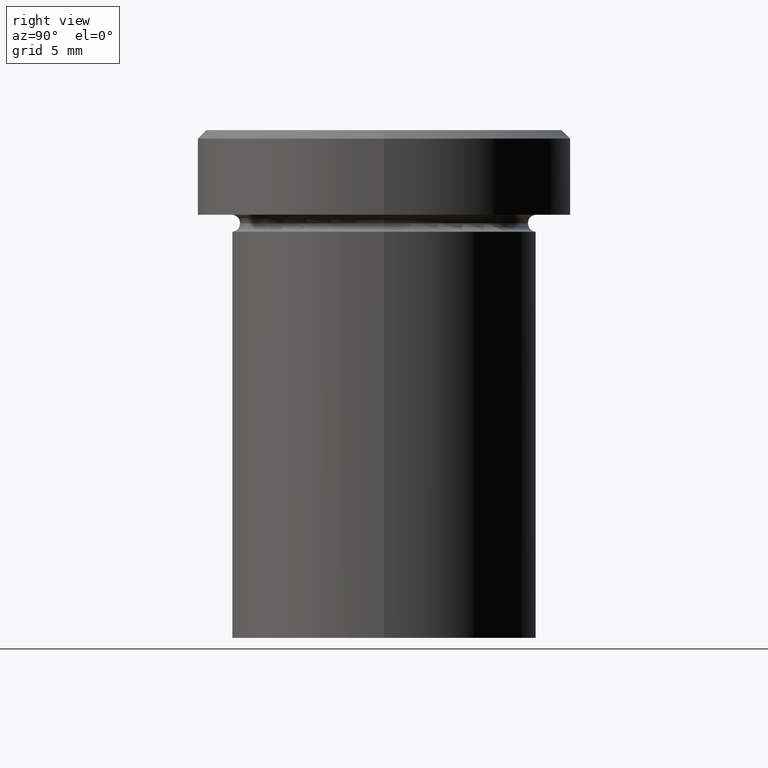
[diagram: clean part render]
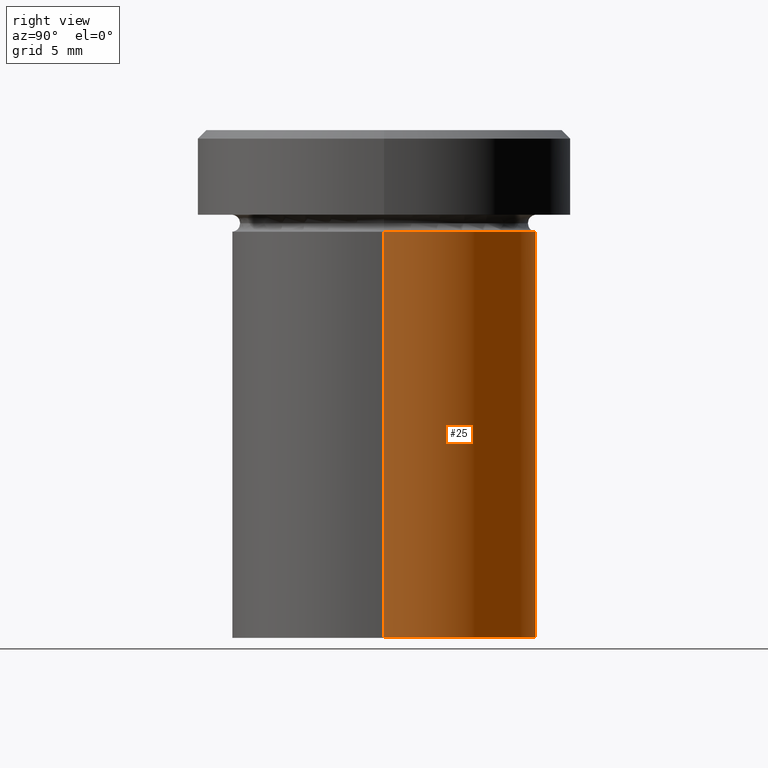
[diagram: same view with one face highlighted and labeled with its STEP entity id]
A machine part, right view. The second image highlights one B-rep face of the part: STEP entity #25.
In plain terms, the highlighted cylindrical surface (partial cylindrical patch) has radius 9 mm, axis along (-0, -0, 1).
Its self-contained STEP definition (entity closure, byte-faithful):
#12 = LINE ( 'NONE', #354, #38 ) ;
#19 = DIRECTION ( 'NONE',  ( -0.000000000000000000, -0.000000000000000000, 1.000000000000000000 ) ) ;
#21 = ORIENTED_EDGE ( 'NONE', *, *, #333, .T. ) ;
#25 = ADVANCED_FACE ( 'NONE', ( #400 ), #238, .T. ) ;
#38 = VECTOR ( 'NONE', #19, 1000.000000000000000 ) ;
#46 = VERTEX_POINT ( 'NONE', #180 ) ;
#100 = DIRECTION ( 'NONE',  ( 1.000000000000000000, 0.000000000000000000, 0.000000000000000000 ) ) ;
#102 = EDGE_CURVE ( 'NONE', #46, #299, #104, .T. ) ;
#104 = LINE ( 'NONE', #162, #195 ) ;
#113 = DIRECTION ( 'NONE',  ( -0.000000000000000000, -0.000000000000000000, 1.000000000000000000 ) ) ;
#131 = EDGE_CURVE ( 'NONE', #407, #303, #12, .T. ) ;
#157 = CARTESIAN_POINT ( 'NONE',  ( 0.000000000000000000, 0.000000000000000000, 0.000000000000000000 ) ) ;
#162 = CARTESIAN_POINT ( 'NONE',  ( 9.000000000000000000, 0.000000000000000000, 0.000000000000000000 ) ) ;
#180 = CARTESIAN_POINT ( 'NONE',  ( 9.000000000000000000, 0.000000000000000000, -30.00000000000000000 ) ) ;
#185 = CARTESIAN_POINT ( 'NONE',  ( 9.000000000000000000, 0.000000000000000000, -6.000000000000000000 ) ) ;
#195 = VECTOR ( 'NONE', #403, 1000.000000000000000 ) ;
#205 = DIRECTION ( 'NONE',  ( 1.000000000000000000, 0.000000000000000000, 0.000000000000000000 ) ) ;
#225 = DIRECTION ( 'NONE',  ( 1.000000000000000000, 0.000000000000000000, 0.000000000000000000 ) ) ;
#237 = CARTESIAN_POINT ( 'NONE',  ( 0.000000000000000000, 0.000000000000000000, -6.000000000000000000 ) ) ;
#238 = CYLINDRICAL_SURFACE ( 'NONE', #285, 9.000000000000000000 ) ;
#259 = EDGE_CURVE ( 'NONE', #299, #303, #409, .T. ) ;
#264 = AXIS2_PLACEMENT_3D ( 'NONE', #237, #368, #100 ) ;
#274 = ORIENTED_EDGE ( 'NONE', *, *, #131, .T. ) ;
#275 = DIRECTION ( 'NONE',  ( -0.000000000000000000, -0.000000000000000000, 1.000000000000000000 ) ) ;
#278 = CARTESIAN_POINT ( 'NONE',  ( -9.000000000000000000, 1.102182119232617714E-15, -6.000000000000000000 ) ) ;
#282 = AXIS2_PLACEMENT_3D ( 'NONE', #323, #113, #225 ) ;
#283 = CARTESIAN_POINT ( 'NONE',  ( -9.000000000000000000, 1.102182119232617714E-15, -30.00000000000000000 ) ) ;
#285 = AXIS2_PLACEMENT_3D ( 'NONE', #157, #275, #205 ) ;
#291 = ORIENTED_EDGE ( 'NONE', *, *, #259, .F. ) ;
#299 = VERTEX_POINT ( 'NONE', #185 ) ;
#303 = VERTEX_POINT ( 'NONE', #278 ) ;
#317 = CIRCLE ( 'NONE', #282, 9.000000000000000000 ) ;
#323 = CARTESIAN_POINT ( 'NONE',  ( 0.000000000000000000, 0.000000000000000000, -30.00000000000000000 ) ) ;
#333 = EDGE_CURVE ( 'NONE', #46, #407, #317, .T. ) ;
#354 = CARTESIAN_POINT ( 'NONE',  ( -9.000000000000000000, 1.102182119232617714E-15, 0.000000000000000000 ) ) ;
#368 = DIRECTION ( 'NONE',  ( -0.000000000000000000, -0.000000000000000000, 1.000000000000000000 ) ) ;
#373 = EDGE_LOOP ( 'NONE', ( #21, #274, #291, #408 ) ) ;
#400 = FACE_OUTER_BOUND ( 'NONE', #373, .T. ) ;
#403 = DIRECTION ( 'NONE',  ( -0.000000000000000000, -0.000000000000000000, 1.000000000000000000 ) ) ;
#407 = VERTEX_POINT ( 'NONE', #283 ) ;
#408 = ORIENTED_EDGE ( 'NONE', *, *, #102, .F. ) ;
#409 = CIRCLE ( 'NONE', #264, 9.000000000000000000 ) ;